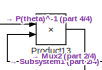
[diagram: root canvas - part 1/4, top right region]
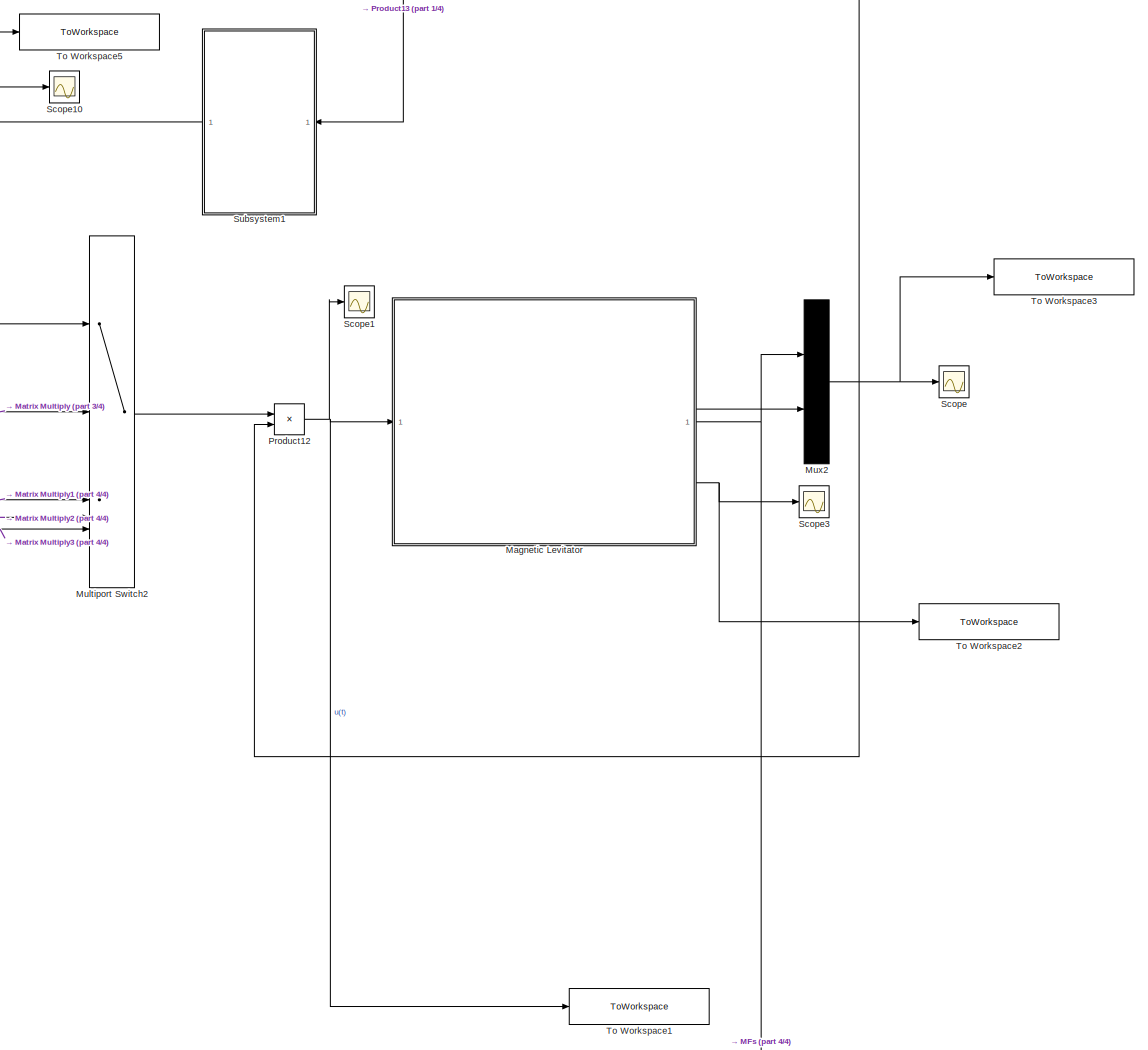
[diagram: root canvas - part 2/4, middle right region]
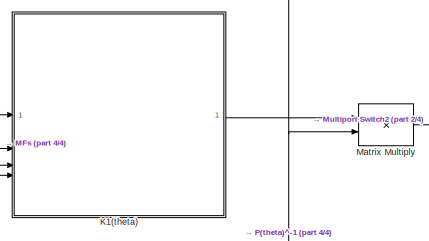
[diagram: root canvas - part 3/4, top left region]
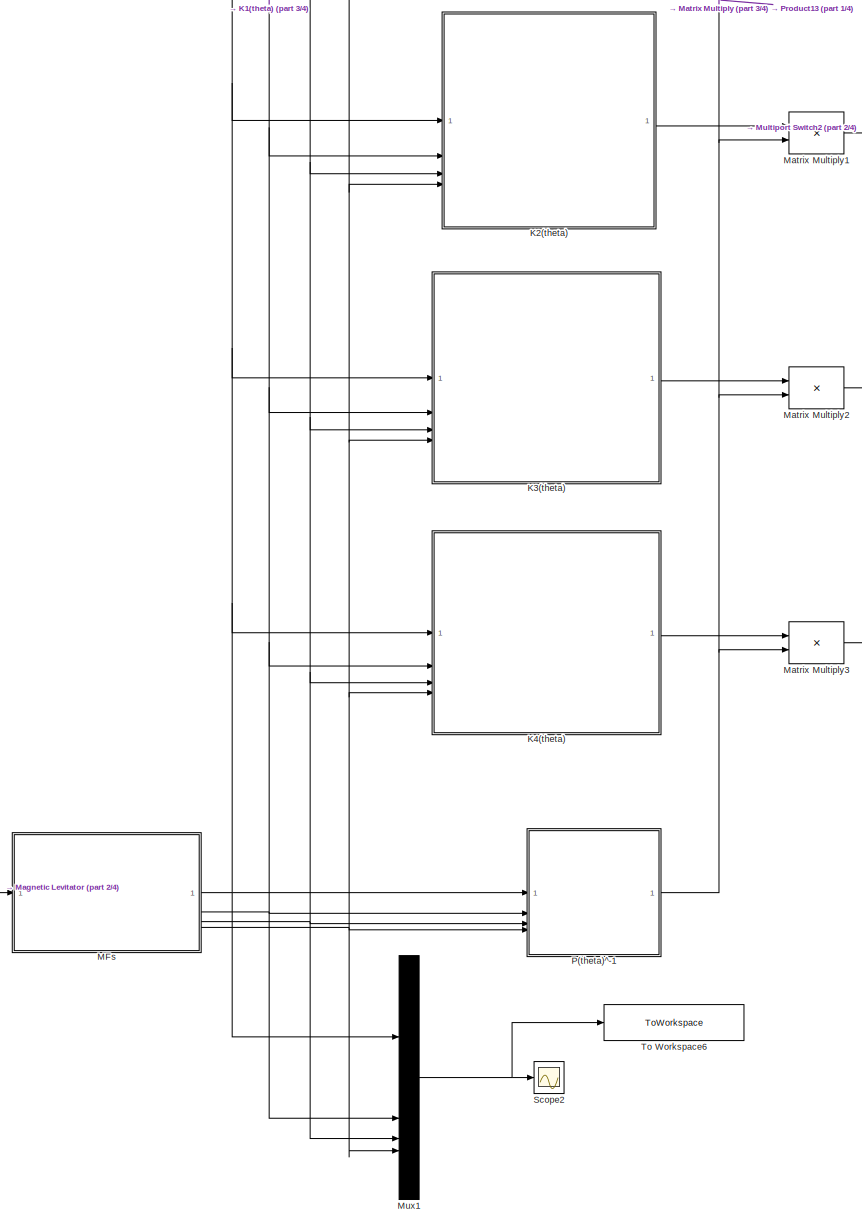
[diagram: root canvas - part 4/4, middle left region]
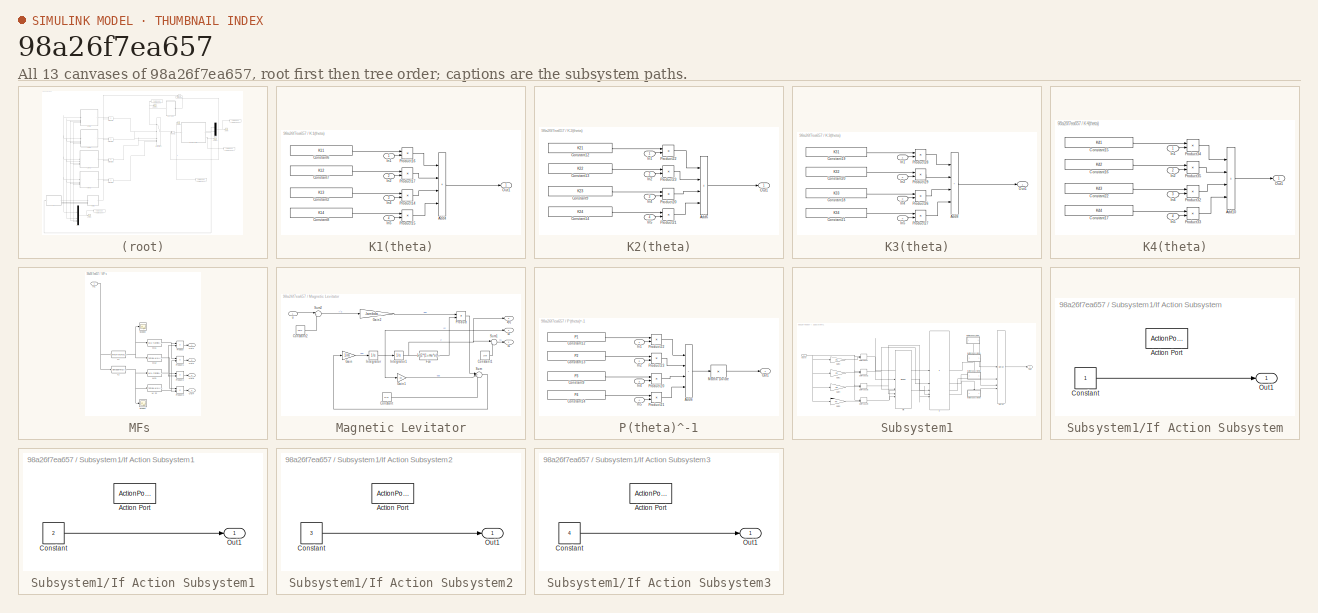
[diagram: thumbnail index - all 13 canvases of the model, root first then tree order]
MODEL slx_98a26f7ea657
KIND model
CONFIG AbsTol = auto
CONFIG EnableMultiTasking = off
CONFIG FixedStep = auto
CONFIG MaxStep = auto
CONFIG MinStep = auto
CONFIG RelTol = 1e-3
CONFIG SampleTimeConstraint = Unconstrained
CONFIG SolverName = VariableStepAuto
CONFIG StartTime = 0.0
CONFIG StopTime = 10.0
BLOCK [SubSystem] K1(theta)
BLOCK [Sum] K1(theta)/Add4
  IconShape = rectangular
  Inputs = ++++
BLOCK [Constant] K1(theta)/Constant2
  Value = K13
BLOCK [Constant] K1(theta)/Constant6
  Value = K11
BLOCK [Constant] K1(theta)/Constant7
  Value = K12
BLOCK [Constant] K1(theta)/Constant8
  Value = K14
BLOCK [Inport] K1(theta)/In1
BLOCK [Inport] K1(theta)/In2
  Port = 2
BLOCK [Inport] K1(theta)/In4
  Port = 3
BLOCK [Inport] K1(theta)/In5
  Port = 4
BLOCK [Outport] K1(theta)/Out1
BLOCK [Product] K1(theta)/Product14
BLOCK [Product] K1(theta)/Product15
BLOCK [Product] K1(theta)/Product16
BLOCK [Product] K1(theta)/Product17
BLOCK [SubSystem] K2(theta)
BLOCK [Sum] K2(theta)/Add6
  IconShape = rectangular
  Inputs = ++++
BLOCK [Constant] K2(theta)/Constant12
  Value = K21
BLOCK [Constant] K2(theta)/Constant13
  Value = K22
BLOCK [Constant] K2(theta)/Constant14
  Value = K24
BLOCK [Constant] K2(theta)/Constant9
  Value = K23
BLOCK [Inport] K2(theta)/In1
BLOCK [Inport] K2(theta)/In2
  Port = 2
BLOCK [Inport] K2(theta)/In4
  Port = 3
BLOCK [Inport] K2(theta)/In5
  Port = 4
BLOCK [Outport] K2(theta)/Out1
BLOCK [Product] K2(theta)/Product20
BLOCK [Product] K2(theta)/Product21
BLOCK [Product] K2(theta)/Product22
BLOCK [Product] K2(theta)/Product23
BLOCK [SubSystem] K3(theta)
BLOCK [Sum] K3(theta)/Add8
  IconShape = rectangular
  Inputs = ++++
BLOCK [Constant] K3(theta)/Constant18
  Value = K33
BLOCK [Constant] K3(theta)/Constant19
  Value = K31
BLOCK [Constant] K3(theta)/Constant20
  Value = K32
BLOCK [Constant] K3(theta)/Constant21
  Value = K34
BLOCK [Inport] K3(theta)/In1
BLOCK [Inport] K3(theta)/In2
  Port = 2
BLOCK [Inport] K3(theta)/In4
  Port = 3
BLOCK [Inport] K3(theta)/In5
  Port = 4
BLOCK [Outport] K3(theta)/Out1
BLOCK [Product] K3(theta)/Product26
BLOCK [Product] K3(theta)/Product27
BLOCK [Product] K3(theta)/Product28
BLOCK [Product] K3(theta)/Product29
BLOCK [SubSystem] K4(theta)
BLOCK [Sum] K4(theta)/Add10
  IconShape = rectangular
  Inputs = ++++
BLOCK [Constant] K4(theta)/Constant15
  Value = K41
BLOCK [Constant] K4(theta)/Constant16
  Value = K42
BLOCK [Constant] K4(theta)/Constant17
  Value = K44
BLOCK [Constant] K4(theta)/Constant22
  Value = K43
BLOCK [Inport] K4(theta)/In1
BLOCK [Inport] K4(theta)/In2
  Port = 2
BLOCK [Inport] K4(theta)/In4
  Port = 3
BLOCK [Inport] K4(theta)/In5
  Port = 4
BLOCK [Outport] K4(theta)/Out1
BLOCK [Product] K4(theta)/Product32
BLOCK [Product] K4(theta)/Product33
BLOCK [Product] K4(theta)/Product34
BLOCK [Product] K4(theta)/Product35
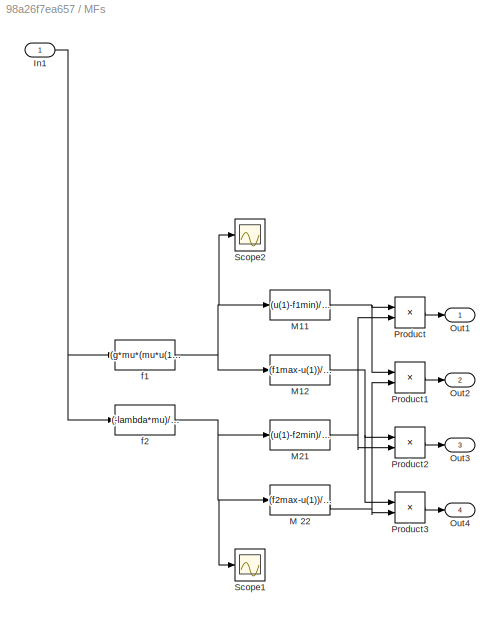
BLOCK [SubSystem] MFs 
BLOCK [Inport] MFs /In1
BLOCK [Fcn] MFs /M 22
  Expr = (f2max-u(1))/(f2max-f2min)
BLOCK [Fcn] MFs /M11
  Expr = (u(1)-f1min)/(f1max-f1min)
BLOCK [Fcn] MFs /M12
  Expr = (f1max-u(1))/(f1max-f1min)
BLOCK [Fcn] MFs /M21
  Expr = (u(1)-f2min)/(f2max-f2min)
BLOCK [Outport] MFs /Out1
BLOCK [Outport] MFs /Out2
  Port = 2
BLOCK [Outport] MFs /Out3
  Port = 3
BLOCK [Outport] MFs /Out4
  Port = 4
BLOCK [Product] MFs /Product
BLOCK [Product] MFs /Product1
BLOCK [Product] MFs /Product2
BLOCK [Product] MFs /Product3
BLOCK [Scope] MFs /Scope1
  Floating = off
  NumInputPorts = 1
  ScopeSpecificationString = Simulink.scopes.TimeScopeBlockCfg('CurrentConfiguration', extmgr.ConfigurationSet(extmgr.Configuration('Core','General UI',true),extmgr.Configuration('Core','Source UI',true),extmgr.Configuration('Sources','WiredSimulink',true,'DataLoggingVariableName','ScopeData5'),extmgr.Configuration('Visuals','Time Domain',true,'SerializedDisplays',{struct('MinYLimReal','-9.56912','MaxYLimReal','1.0629','YLabe...<+1521ch>
BLOCK [Scope] MFs /Scope2
  Floating = off
  NumInputPorts = 1
  ScopeSpecificationString = Simulink.scopes.TimeScopeBlockCfg('CurrentConfiguration', extmgr.ConfigurationSet(extmgr.Configuration('Core','General UI',true),extmgr.Configuration('Core','Source UI',true),extmgr.Configuration('Sources','WiredSimulink',true,'DataLoggingVariableName','ScopeData4'),extmgr.Configuration('Visuals','Time Domain',true,'SerializedDisplays',{struct('MinYLimReal','20.96565','MaxYLimReal','41.967','YLabe...<+1521ch>
BLOCK [Fcn] MFs /f1
  Expr = (g*mu*(mu*u(1)+2*mu*zref+2))/((1+mu*(zref+u(1)))^2)
BLOCK [Fcn] MFs /f2
  Expr = (-lambda*mu)/(2*mm*(1+mu*(zref+u(1)))^2)
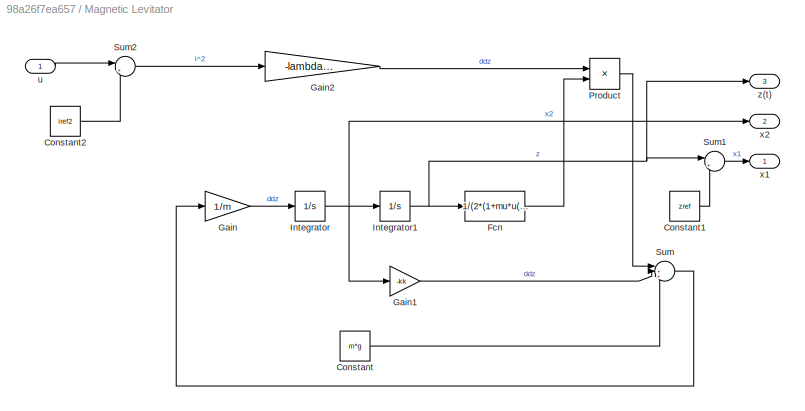
BLOCK [SubSystem] Magnetic Levitator
BLOCK [Constant] Magnetic Levitator/Constant
  Value = m*g
BLOCK [Constant] Magnetic Levitator/Constant1
  Value = zref
BLOCK [Constant] Magnetic Levitator/Constant2
  Value = iref2
BLOCK [Fcn] Magnetic Levitator/Fcn
  Expr = 1/(2*(1+mu*u(1))^2)
BLOCK [Gain] Magnetic Levitator/Gain
  Gain = 1/m
BLOCK [Gain] Magnetic Levitator/Gain1
  Gain = -kk
BLOCK [Gain] Magnetic Levitator/Gain2
  Gain = -lambda*mu
BLOCK [Integrator] Magnetic Levitator/Integrator
BLOCK [Integrator] Magnetic Levitator/Integrator1
BLOCK [Product] Magnetic Levitator/Product
BLOCK [Sum] Magnetic Levitator/Sum
  Inputs = |+++
BLOCK [Sum] Magnetic Levitator/Sum1
  Inputs = |+-
BLOCK [Sum] Magnetic Levitator/Sum2
  Inputs = |++
BLOCK [Inport] Magnetic Levitator/u
BLOCK [Outport] Magnetic Levitator/x1
BLOCK [Outport] Magnetic Levitator/x2
  Port = 2
BLOCK [Outport] Magnetic Levitator/z(t)
  Port = 3
BLOCK [Product] Matrix Multiply
  Multiplication = Matrix(*)
BLOCK [Product] Matrix Multiply1
  Multiplication = Matrix(*)
BLOCK [Product] Matrix Multiply2
  Multiplication = Matrix(*)
BLOCK [Product] Matrix Multiply3
  Multiplication = Matrix(*)
BLOCK [MultiPortSwitch] Multiport Switch2
  InputSameDT = off
  Inputs = 4
  SaturateOnIntegerOverflow = off
BLOCK [Mux] Mux1
  DisplayOption = signals
BLOCK [Mux] Mux2
  DisplayOption = signals
  Inputs = 2
BLOCK [SubSystem] P(theta)^-1
BLOCK [Sum] P(theta)^-1/Add6
  IconShape = rectangular
  Inputs = ++++
BLOCK [Constant] P(theta)^-1/Constant12
  Value = P1
BLOCK [Constant] P(theta)^-1/Constant13
  Value = P2
BLOCK [Constant] P(theta)^-1/Constant14
  Value = P4
BLOCK [Constant] P(theta)^-1/Constant9
  Value = P3
BLOCK [Inport] P(theta)^-1/In1
BLOCK [Inport] P(theta)^-1/In2
  Port = 2
BLOCK [Inport] P(theta)^-1/In4
  Port = 3
BLOCK [Inport] P(theta)^-1/In5
  Port = 4
BLOCK [Product] P(theta)^-1/Matrix Divide
  Inputs = /
  Multiplication = Matrix(*)
BLOCK [Outport] P(theta)^-1/Out1
BLOCK [Product] P(theta)^-1/Product20
BLOCK [Product] P(theta)^-1/Product21
BLOCK [Product] P(theta)^-1/Product22
BLOCK [Product] P(theta)^-1/Product23
BLOCK [Product] Product12
  Multiplication = Matrix(*)
BLOCK [Product] Product13
  Multiplication = Matrix(*)
BLOCK [Scope] Scope
  Floating = off
  NumInputPorts = 1
  ScopeSpecificationString = Simulink.scopes.TimeScopeBlockCfg('CurrentConfiguration', extmgr.ConfigurationSet(extmgr.Configuration('Core','General UI',true),extmgr.Configuration('Core','Source UI',true),extmgr.Configuration('Sources','WiredSimulink',true,'DataLoggingVariableName','ScopeData1'),extmgr.Configuration('Visuals','Time Domain',true,'SerializedDisplays',{struct('MinYLimReal','-0.85776','MaxYLimReal','3.09531','YLab...<+1566ch>
BLOCK [Scope] Scope1
  Floating = off
  NumInputPorts = 1
  ScopeSpecificationString = Simulink.scopes.TimeScopeBlockCfg('CurrentConfiguration', extmgr.ConfigurationSet(extmgr.Configuration('Core','General UI',true),extmgr.Configuration('Core','Source UI',true),extmgr.Configuration('Sources','WiredSimulink',true,'DataLoggingVariableName','ScopeData2'),extmgr.Configuration('Visuals','Time Domain',true,'SerializedDisplays',{struct('MinYLimReal','-283.75624','MaxYLimReal','31.5281','YL...<+1535ch>
BLOCK [Scope] Scope10
  Floating = off
  NumInputPorts = 1
  ScopeSpecificationString = Simulink.scopes.TimeScopeBlockCfg('CurrentConfiguration', extmgr.ConfigurationSet(extmgr.Configuration('Core','General UI',true),extmgr.Configuration('Core','Source UI',true),extmgr.Configuration('Sources','WiredSimulink',true,'DataLoggingVariableName','ScopeData10'),extmgr.Configuration('Visuals','Time Domain',true,'SerializedDisplays',{struct('MinYLimReal','0.625','MaxYLimReal','4.375','YLabelRe...<+1514ch>
BLOCK [Scope] Scope2
  Floating = off
  NumInputPorts = 1
  ScopeSpecificationString = Simulink.scopes.TimeScopeBlockCfg('CurrentConfiguration', extmgr.ConfigurationSet(extmgr.Configuration('Core','General UI',true),extmgr.Configuration('Core','Source UI',true),extmgr.Configuration('Sources','WiredSimulink',true,'DataLoggingVariableName','ScopeData3'),extmgr.Configuration('Visuals','Time Domain',true,'SerializedDisplays',{struct('MinYLimReal','-0.10035','MaxYLimReal','0.96021','YLab...<+1554ch>
BLOCK [Scope] Scope3
  Floating = off
  NumInputPorts = 1
  ScopeSpecificationString = Simulink.scopes.TimeScopeBlockCfg('CurrentConfiguration', extmgr.ConfigurationSet(extmgr.Configuration('Core','General UI',true),extmgr.Configuration('Core','Source UI',true),extmgr.Configuration('Sources','WiredSimulink',true,'DataLoggingVariableName','ScopeData6'),extmgr.Configuration('Visuals','Time Domain',true,'SerializedDisplays',{struct('MinYLimReal','0.06364','MaxYLimReal','0.22718','YLabe...<+1539ch>
BLOCK [SubSystem] Subsystem1
BLOCK [DotProduct] Subsystem1/Dot Product
  OutDataTypeStr = Inherit: Inherit via internal rule
BLOCK [DotProduct] Subsystem1/Dot Product1
  OutDataTypeStr = Inherit: Inherit via internal rule
BLOCK [DotProduct] Subsystem1/Dot Product3
  OutDataTypeStr = Inherit: Inherit via internal rule
BLOCK [DotProduct] Subsystem1/Dot Product4
  OutDataTypeStr = Inherit: Inherit via internal rule
BLOCK [Gain] Subsystem1/Gain1
  Gain = P2
  Multiplication = Matrix(u*K)
BLOCK [Gain] Subsystem1/Gain2
  Gain = P1
  Multiplication = Matrix(u*K)
BLOCK [Gain] Subsystem1/Gain4
  Gain = P3
  Multiplication = Matrix(u*K)
BLOCK [Gain] Subsystem1/Gain5
  Gain = P4
  Multiplication = Matrix(u*K)
BLOCK [If] Subsystem1/If
  ElseIfExpressions = u2==u5, u3==u5,u4==u5
  IfExpression = u1==u5
  NumInputs = 5
  ShowElse = off
  ZeroCross = off
BLOCK [SubSystem] Subsystem1/If Action Subsystem
  TreatAsAtomicUnit = on
BLOCK [ActionPort] Subsystem1/If Action Subsystem/Action Port
  ActionPortLabel = if(u1==u5)
BLOCK [Constant] Subsystem1/If Action Subsystem/Constant
BLOCK [Outport] Subsystem1/If Action Subsystem/Out1
BLOCK [SubSystem] Subsystem1/If Action Subsystem1
  TreatAsAtomicUnit = on
BLOCK [ActionPort] Subsystem1/If Action Subsystem1/Action Port
  ActionPortLabel = elseif(u2==u5)
BLOCK [Constant] Subsystem1/If Action Subsystem1/Constant
  Value = 2
BLOCK [Outport] Subsystem1/If Action Subsystem1/Out1
BLOCK [SubSystem] Subsystem1/If Action Subsystem2
  TreatAsAtomicUnit = on
BLOCK [ActionPort] Subsystem1/If Action Subsystem2/Action Port
  ActionPortLabel = elseif( u3==u5)
BLOCK [Constant] Subsystem1/If Action Subsystem2/Constant
  Value = 3
BLOCK [Outport] Subsystem1/If Action Subsystem2/Out1
BLOCK [SubSystem] Subsystem1/If Action Subsystem3
  TreatAsAtomicUnit = on
BLOCK [ActionPort] Subsystem1/If Action Subsystem3/Action Port
  ActionPortLabel = elseif(u4==u5)
BLOCK [Constant] Subsystem1/If Action Subsystem3/Constant
  Value = 4
BLOCK [Outport] Subsystem1/If Action Subsystem3/Out1
BLOCK [Merge] Subsystem1/Merge
  Inputs = 4
BLOCK [MinMax] Subsystem1/Min
  Function = max
  Inputs = 4
  ZeroCross = off
BLOCK [Outport] Subsystem1/Out1
BLOCK [Inport] Subsystem1/eps(t)
BLOCK [ToWorkspace] To Workspace1
  FixptAsFi = on
  MaxDataPoints = inf
  SampleTime = -1
  VariableName = u_t
BLOCK [ToWorkspace] To Workspace2
  FixptAsFi = on
  MaxDataPoints = inf
  SampleTime = -1
  VariableName = z_t
BLOCK [ToWorkspace] To Workspace3
  FixptAsFi = on
  MaxDataPoints = inf
  SampleTime = -1
  VariableName = x_t
BLOCK [ToWorkspace] To Workspace5
  FixptAsFi = on
  MaxDataPoints = inf
  SampleTime = -1
  VariableName = switchingfunction
BLOCK [ToWorkspace] To Workspace6
  FixptAsFi = on
  MaxDataPoints = inf
  SampleTime = -1
  VariableName = MFs
LINE K1(theta)/Add4:1 -> K1(theta)/Out1:1
LINE K1(theta)/Constant2:1 -> K1(theta)/Product14:1
LINE K1(theta)/Constant6:1 -> K1(theta)/Product16:1
LINE K1(theta)/Constant7:1 -> K1(theta)/Product17:1
LINE K1(theta)/Constant8:1 -> K1(theta)/Product15:1
LINE K1(theta)/In1:1 -> K1(theta)/Product16:2
LINE K1(theta)/In2:1 -> K1(theta)/Product17:2
LINE K1(theta)/In4:1 -> K1(theta)/Product14:2
LINE K1(theta)/In5:1 -> K1(theta)/Product15:2
LINE K1(theta)/Product14:1 -> K1(theta)/Add4:3
LINE K1(theta)/Product15:1 -> K1(theta)/Add4:4
LINE K1(theta)/Product16:1 -> K1(theta)/Add4:1
LINE K1(theta)/Product17:1 -> K1(theta)/Add4:2
LINE K1(theta):1 -> Matrix Multiply:1
LINE K2(theta)/Add6:1 -> K2(theta)/Out1:1
LINE K2(theta)/Constant12:1 -> K2(theta)/Product22:1
LINE K2(theta)/Constant13:1 -> K2(theta)/Product23:1
LINE K2(theta)/Constant14:1 -> K2(theta)/Product21:1
LINE K2(theta)/Constant9:1 -> K2(theta)/Product20:1
LINE K2(theta)/In1:1 -> K2(theta)/Product22:2
LINE K2(theta)/In2:1 -> K2(theta)/Product23:2
LINE K2(theta)/In4:1 -> K2(theta)/Product20:2
LINE K2(theta)/In5:1 -> K2(theta)/Product21:2
LINE K2(theta)/Product20:1 -> K2(theta)/Add6:3
LINE K2(theta)/Product21:1 -> K2(theta)/Add6:4
LINE K2(theta)/Product22:1 -> K2(theta)/Add6:1
LINE K2(theta)/Product23:1 -> K2(theta)/Add6:2
LINE K2(theta):1 -> Matrix Multiply1:1
LINE K3(theta)/Add8:1 -> K3(theta)/Out1:1
LINE K3(theta)/Constant18:1 -> K3(theta)/Product26:1
LINE K3(theta)/Constant19:1 -> K3(theta)/Product28:1
LINE K3(theta)/Constant20:1 -> K3(theta)/Product29:1
LINE K3(theta)/Constant21:1 -> K3(theta)/Product27:1
LINE K3(theta)/In1:1 -> K3(theta)/Product28:2
LINE K3(theta)/In2:1 -> K3(theta)/Product29:2
LINE K3(theta)/In4:1 -> K3(theta)/Product26:2
LINE K3(theta)/In5:1 -> K3(theta)/Product27:2
LINE K3(theta)/Product26:1 -> K3(theta)/Add8:3
LINE K3(theta)/Product27:1 -> K3(theta)/Add8:4
LINE K3(theta)/Product28:1 -> K3(theta)/Add8:1
LINE K3(theta)/Product29:1 -> K3(theta)/Add8:2
LINE K3(theta):1 -> Matrix Multiply2:1
LINE K4(theta)/Add10:1 -> K4(theta)/Out1:1
LINE K4(theta)/Constant15:1 -> K4(theta)/Product34:1
LINE K4(theta)/Constant16:1 -> K4(theta)/Product35:1
LINE K4(theta)/Constant17:1 -> K4(theta)/Product33:1
LINE K4(theta)/Constant22:1 -> K4(theta)/Product32:1
LINE K4(theta)/In1:1 -> K4(theta)/Product34:2
LINE K4(theta)/In2:1 -> K4(theta)/Product35:2
LINE K4(theta)/In4:1 -> K4(theta)/Product32:2
LINE K4(theta)/In5:1 -> K4(theta)/Product33:2
LINE K4(theta)/Product32:1 -> K4(theta)/Add10:3
LINE K4(theta)/Product33:1 -> K4(theta)/Add10:4
LINE K4(theta)/Product34:1 -> K4(theta)/Add10:1
LINE K4(theta)/Product35:1 -> K4(theta)/Add10:2
LINE K4(theta):1 -> Matrix Multiply3:1
NET MFs /In1:1 -> MFs /f1:1, MFs /f2:1
NET MFs /M 22:1 -> MFs /Product1:2, MFs /Product3:2
NET MFs /M11:1 -> MFs /Product1:1, MFs /Product:1
NET MFs /M12:1 -> MFs /Product2:1, MFs /Product3:1
NET MFs /M21:1 -> MFs /Product2:2, MFs /Product:2
LINE MFs /Product1:1 -> MFs /Out2:1
LINE MFs /Product2:1 -> MFs /Out3:1
LINE MFs /Product3:1 -> MFs /Out4:1
LINE MFs /Product:1 -> MFs /Out1:1
NET MFs /f1:1 -> MFs /M11:1, MFs /M12:1, MFs /Scope2:1
NET MFs /f2:1 -> MFs /M 22:1, MFs /M21:1, MFs /Scope1:1
NET MFs :1 -> K1(theta):1, K2(theta):1, K3(theta):1, K4(theta):1, Mux1:1, P(theta)^-1:1
NET MFs :2 -> K1(theta):2, K2(theta):2, K3(theta):2, K4(theta):2, Mux1:2, P(theta)^-1:2
NET MFs :3 -> K1(theta):3, K2(theta):3, K3(theta):3, K4(theta):3, Mux1:3, P(theta)^-1:3
NET MFs :4 -> K1(theta):4, K2(theta):4, K3(theta):4, K4(theta):4, Mux1:4, P(theta)^-1:4
LINE Magnetic Levitator/Constant1:1 -> Magnetic Levitator/Sum1:2
LINE Magnetic Levitator/Constant2:1 -> Magnetic Levitator/Sum2:2
LINE Magnetic Levitator/Constant:1 -> Magnetic Levitator/Sum:3
LINE Magnetic Levitator/Fcn:1 -> Magnetic Levitator/Product:2
LINE Magnetic Levitator/Gain1:1 -> Magnetic Levitator/Sum:2
LINE Magnetic Levitator/Gain2:1 -> Magnetic Levitator/Product:1
LINE Magnetic Levitator/Gain:1 -> Magnetic Levitator/Integrator:1
NET Magnetic Levitator/Integrator1:1 -> Magnetic Levitator/Fcn:1, Magnetic Levitator/Sum1:1, Magnetic Levitator/z(t):1
NET Magnetic Levitator/Integrator:1 -> Magnetic Levitator/Gain1:1, Magnetic Levitator/Integrator1:1, Magnetic Levitator/x2:1
LINE Magnetic Levitator/Product:1 -> Magnetic Levitator/Sum:1
LINE Magnetic Levitator/Sum1:1 -> Magnetic Levitator/x1:1
LINE Magnetic Levitator/Sum2:1 -> Magnetic Levitator/Gain2:1
LINE Magnetic Levitator/Sum:1 -> Magnetic Levitator/Gain:1
LINE Magnetic Levitator/u:1 -> Magnetic Levitator/Sum2:1
NET Magnetic Levitator:1 -> MFs :1, Mux2:1
LINE Magnetic Levitator:2 -> Mux2:2
NET Magnetic Levitator:3 -> Scope3:1, To Workspace2:1
LINE Matrix Multiply1:1 -> Multiport Switch2:3
LINE Matrix Multiply2:1 -> Multiport Switch2:4
LINE Matrix Multiply3:1 -> Multiport Switch2:5
LINE Matrix Multiply:1 -> Multiport Switch2:2
LINE Multiport Switch2:1 -> Product12:1
NET Mux1:1 -> Scope2:1, To Workspace6:1
NET Mux2:1 -> Product12:2, Product13:2, Scope:1, To Workspace3:1
LINE P(theta)^-1/Add6:1 -> P(theta)^-1/Matrix Divide:1
LINE P(theta)^-1/Constant12:1 -> P(theta)^-1/Product22:1
LINE P(theta)^-1/Constant13:1 -> P(theta)^-1/Product23:1
LINE P(theta)^-1/Constant14:1 -> P(theta)^-1/Product21:1
LINE P(theta)^-1/Constant9:1 -> P(theta)^-1/Product20:1
LINE P(theta)^-1/In1:1 -> P(theta)^-1/Product22:2
LINE P(theta)^-1/In2:1 -> P(theta)^-1/Product23:2
LINE P(theta)^-1/In4:1 -> P(theta)^-1/Product20:2
LINE P(theta)^-1/In5:1 -> P(theta)^-1/Product21:2
LINE P(theta)^-1/Matrix Divide:1 -> P(theta)^-1/Out1:1
LINE P(theta)^-1/Product20:1 -> P(theta)^-1/Add6:3
LINE P(theta)^-1/Product21:1 -> P(theta)^-1/Add6:4
LINE P(theta)^-1/Product22:1 -> P(theta)^-1/Add6:1
LINE P(theta)^-1/Product23:1 -> P(theta)^-1/Add6:2
NET P(theta)^-1:1 -> Matrix Multiply1:2, Matrix Multiply2:2, Matrix Multiply3:2, Matrix Multiply:2, Product13:1
NET Product12:1 -> Magnetic Levitator:1, Scope1:1, To Workspace1:1
LINE Product13:1 -> Subsystem1:1
NET Subsystem1/Dot Product1:1 -> Subsystem1/If:2, Subsystem1/Min:2
NET Subsystem1/Dot Product3:1 -> Subsystem1/If:3, Subsystem1/Min:3
NET Subsystem1/Dot Product4:1 -> Subsystem1/If:4, Subsystem1/Min:4
NET Subsystem1/Dot Product:1 -> Subsystem1/If:1, Subsystem1/Min:1
LINE Subsystem1/Gain1:1 -> Subsystem1/Dot Product1:2
LINE Subsystem1/Gain2:1 -> Subsystem1/Dot Product:2
LINE Subsystem1/Gain4:1 -> Subsystem1/Dot Product3:2
LINE Subsystem1/Gain5:1 -> Subsystem1/Dot Product4:2
LINE Subsystem1/If Action Subsystem/Constant:1 -> Subsystem1/If Action Subsystem/Out1:1
LINE Subsystem1/If Action Subsystem1/Constant:1 -> Subsystem1/If Action Subsystem1/Out1:1
LINE Subsystem1/If Action Subsystem1:1 -> Subsystem1/Merge:2
LINE Subsystem1/If Action Subsystem2/Constant:1 -> Subsystem1/If Action Subsystem2/Out1:1
LINE Subsystem1/If Action Subsystem2:1 -> Subsystem1/Merge:3
LINE Subsystem1/If Action Subsystem3/Constant:1 -> Subsystem1/If Action Subsystem3/Out1:1
LINE Subsystem1/If Action Subsystem3:1 -> Subsystem1/Merge:4
LINE Subsystem1/If Action Subsystem:1 -> Subsystem1/Merge:1
LINE Subsystem1/If:1 -> Subsystem1/If Action Subsystem:ifaction
LINE Subsystem1/If:2 -> Subsystem1/If Action Subsystem1:ifaction
LINE Subsystem1/If:3 -> Subsystem1/If Action Subsystem2:ifaction
LINE Subsystem1/If:4 -> Subsystem1/If Action Subsystem3:ifaction
LINE Subsystem1/Merge:1 -> Subsystem1/Out1:1
LINE Subsystem1/Min:1 -> Subsystem1/If:5
NET Subsystem1/eps(t):1 -> Subsystem1/Dot Product1:1, Subsystem1/Dot Product3:1, Subsystem1/Dot Product4:1, Subsystem1/Dot Product:1, Subsystem1/Gain1:1, Subsystem1/Gain2:1, Subsystem1/Gain4:1, Subsystem1/Gain5:1
NET Subsystem1:1 -> Multiport Switch2:1, Scope10:1, To Workspace5:1
note: NET lines group one-source signal fan-out (src -> all destinations, sorted); 1:1 wires keep LINE
